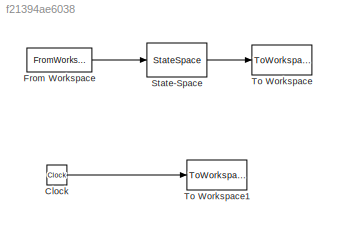
MODEL slx_f21394ae6038
KIND model
BLOCK [Clock] Clock
BLOCK [FromWorkspace] From Workspace
  OutputAfterFinalValue = Setting to zero
  SampleTime = dt
  VariableName = tt_acc
  ZeroCross = on
BLOCK [StateSpace] State-Space
  A = Ac
  B = Bc
  C = Cc
  D = Dc
  Ports = [1, 1]
  X0 = 0
BLOCK [ToWorkspace] To Workspace
  MaxDataPoints = inf
  Ports = [1]
  SampleTime = -1
  VariableName = y
BLOCK [ToWorkspace] To Workspace1
  MaxDataPoints = inf
  Ports = [1]
  SampleTime = -1
  VariableName = tt
LINE Clock:1 -> To Workspace1:1
LINE From Workspace:1 -> State-Space:1
LINE State-Space:1 -> To Workspace:1
